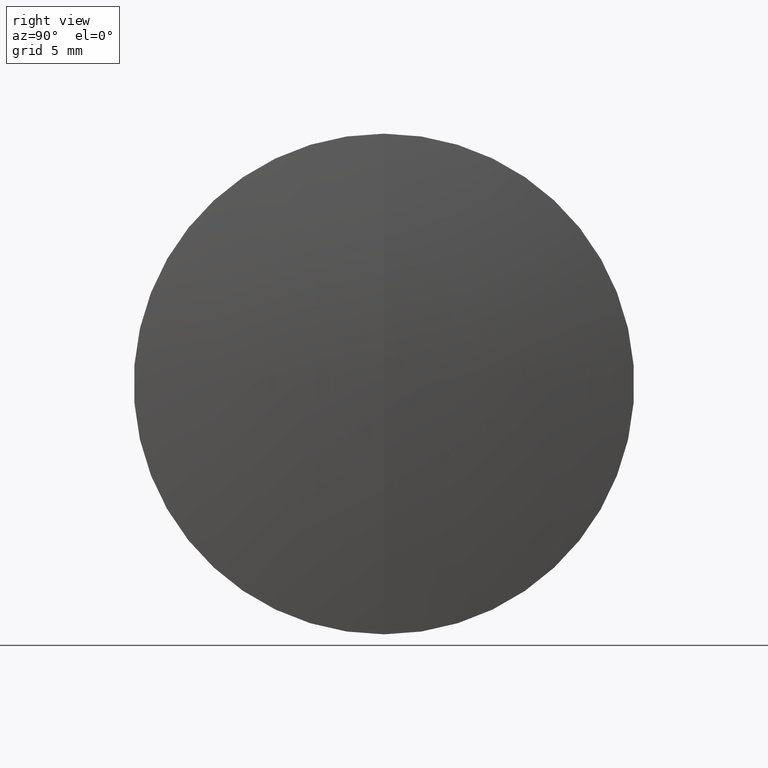
[diagram: clean part render]
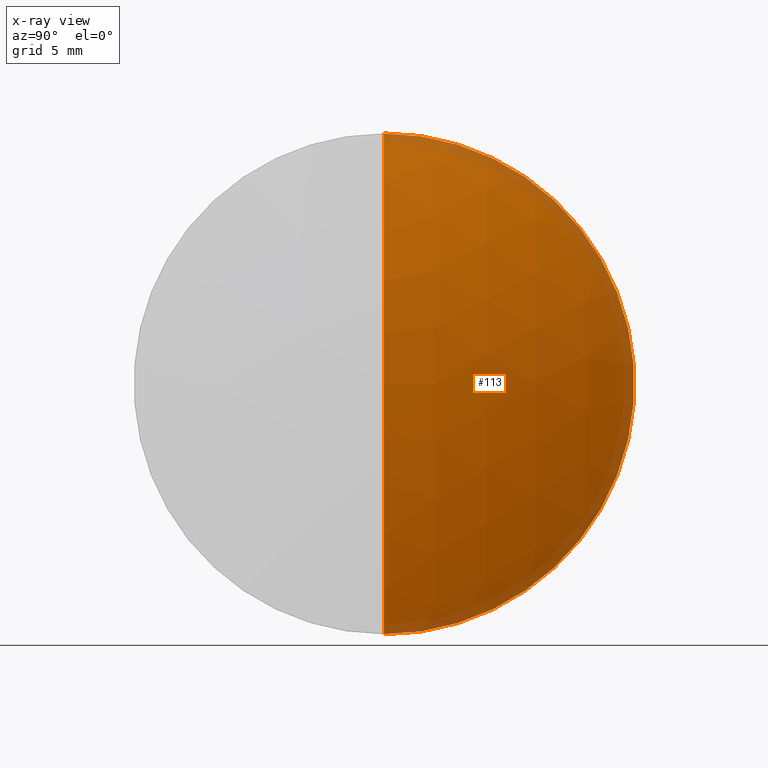
[diagram: x-ray — body ghosted, one internal face saturated and labeled with its STEP entity id]
A machine part, right view, then the same camera in x-ray: the body is ghosted and one INTERNAL B-rep face — a face not visible from any outside direction — is saturated and labeled: STEP entity #113.
In plain terms, the highlighted spherical surface has radius 33.9 mm.
Its self-contained STEP definition (entity closure, byte-faithful):
#12 = ORIENTED_EDGE ( 'NONE', *, *, #70, .F. ) ;
#16 = SPHERICAL_SURFACE ( 'NONE', #86, 33.89999999999998400 ) ;
#18 = ORIENTED_EDGE ( 'NONE', *, *, #301, .F. ) ;
#27 = DIRECTION ( 'NONE',  ( 0.0000000000000000000, 0.0000000000000000000, 1.000000000000000000 ) ) ;
#41 = AXIS2_PLACEMENT_3D ( 'NONE', #278, #277, #238 ) ;
#46 = VERTEX_POINT ( 'NONE', #158 ) ;
#62 = EDGE_CURVE ( 'NONE', #46, #160, #243, .T. ) ;
#70 = EDGE_CURVE ( 'NONE', #46, #259, #284, .T. ) ;
#75 = CARTESIAN_POINT ( 'NONE',  ( 211.0958458084194300, 0.0000000000000000000, -3.185954776904472300E-015 ) ) ;
#86 = AXIS2_PLACEMENT_3D ( 'NONE', #190, #163, #264 ) ;
#108 = CARTESIAN_POINT ( 'NONE',  ( 242.5270405041353300, 1.555301434917138000E-015, -12.69999999999999600 ) ) ;
#113 = ADVANCED_FACE ( 'NONE', ( #342 ), #16, .T. ) ;
#114 = AXIS2_PLACEMENT_3D ( 'NONE', #184, #346, #27 ) ;
#158 = CARTESIAN_POINT ( 'NONE',  ( 244.9958458084194000, 0.0000000000000000000, -1.110178452349709700E-015 ) ) ;
#160 = VERTEX_POINT ( 'NONE', #108 ) ;
#163 = DIRECTION ( 'NONE',  ( 0.0000000000000000000, 1.000000000000000000, 0.0000000000000000000 ) ) ;
#178 = CIRCLE ( 'NONE', #114, 12.69999999999999600 ) ;
#182 = ORIENTED_EDGE ( 'NONE', *, *, #62, .T. ) ;
#183 = AXIS2_PLACEMENT_3D ( 'NONE', #75, #206, #199 ) ;
#184 = CARTESIAN_POINT ( 'NONE',  ( 242.5270405041353300, 0.0000000000000000000, 0.0000000000000000000 ) ) ;
#190 = CARTESIAN_POINT ( 'NONE',  ( 211.0958458084194300, 0.0000000000000000000, -3.185954776904472300E-015 ) ) ;
#199 = DIRECTION ( 'NONE',  ( 0.0000000000000000000, -1.224646799147353200E-016, 1.000000000000000000 ) ) ;
#206 = DIRECTION ( 'NONE',  ( -0.0000000000000000000, 1.000000000000000000, 1.224646799147353200E-016 ) ) ;
#211 = CARTESIAN_POINT ( 'NONE',  ( 242.5270405041353300, 0.0000000000000000000, 12.69999999999999600 ) ) ;
#238 = DIRECTION ( 'NONE',  ( 0.0000000000000000000, 0.0000000000000000000, -1.000000000000000000 ) ) ;
#243 = CIRCLE ( 'NONE', #183, 33.89999999999998400 ) ;
#259 = VERTEX_POINT ( 'NONE', #211 ) ;
#264 = DIRECTION ( 'NONE',  ( 0.0000000000000000000, 0.0000000000000000000, 1.000000000000000000 ) ) ;
#277 = DIRECTION ( 'NONE',  ( 0.0000000000000000000, -1.000000000000000000, 0.0000000000000000000 ) ) ;
#278 = CARTESIAN_POINT ( 'NONE',  ( 211.0958458084194300, 0.0000000000000000000, -3.185954776904472300E-015 ) ) ;
#284 = CIRCLE ( 'NONE', #41, 33.89999999999998400 ) ;
#290 = EDGE_LOOP ( 'NONE', ( #12, #182, #18 ) ) ;
#301 = EDGE_CURVE ( 'NONE', #259, #160, #178, .T. ) ;
#342 = FACE_OUTER_BOUND ( 'NONE', #290, .T. ) ;
#346 = DIRECTION ( 'NONE',  ( -1.000000000000000000, -0.0000000000000000000, -0.0000000000000000000 ) ) ;